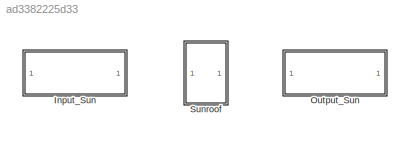
MODEL slx_ad3382225d33
KIND model
CONFIG AbsTol = auto
CONFIG EnableMultiTasking = off
CONFIG FixedStep = auto
CONFIG MaxStep = auto
CONFIG MinStep = auto
CONFIG RelTol = 1e-3
CONFIG SampleTimeConstraint = Unconstrained
CONFIG SolverName = VariableStepAuto
CONFIG StartTime = 0.0
CONFIG StopTime = 6
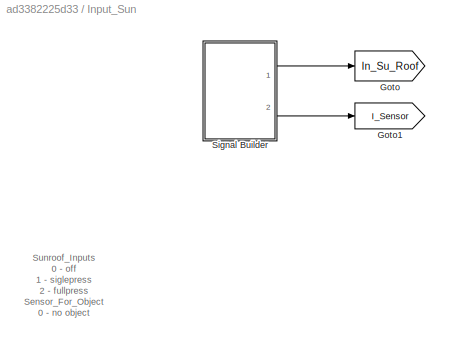
BLOCK [SubSystem] Input_Sun
  Ports = []
  RequestExecContextInheritance = off
BLOCK [Goto] Input_Sun/Goto
  GotoTag = In_Su_Roof
  TagVisibility = global
BLOCK [Goto] Input_Sun/Goto1
  GotoTag = I_Sensor
  TagVisibility = global
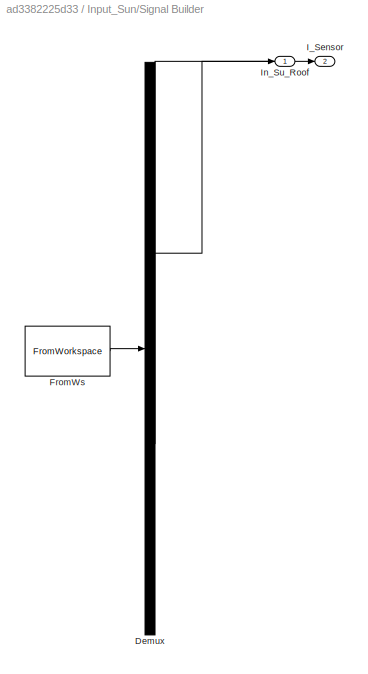
BLOCK [SubSystem] Input_Sun/Signal Builder
  ClipboardFcn = sigbuilder_block('clipboard');
  CloseFcn = sigbuilder_block('close');
  ContinueFcn = sigbuilder_block('continue');
  CopyFcn = sigbuilder_block('copy');
  DeleteFcn = sigbuilder_block('delete');
  LoadFcn = sigbuilder_block('load',[403.5 199.2 550.5 359.55 ]);
  MaskHideContents = on
  ModelCloseFcn = sigbuilder_block('modelClose');
  NameChangeFcn = sigbuilder_block('namechange');
  OpenFcn = sigbuilder_block('open',[403.5 199.2 550.5 359.55 ]);
  PauseFcn = sigbuilder_block('pause');
  Ports = [0, 2]
  PreSaveFcn = sigbuilder_block('preSave');
  RequestExecContextInheritance = off
  StartFcn = sigbuilder_block('start');
  StopFcn = sigbuilder_block('stop');
  Tag = STV Subsys
BLOCK [Demux] Input_Sun/Signal Builder/Demux
  DisplayOption = none
  Outputs = 2
  Ports = [1, 2]
  Tag = STV Demux
BLOCK [FromWorkspace] Input_Sun/Signal Builder/FromWs
  Tag = STV FromWs
  VariableName = tuvar
BLOCK [Outport] Input_Sun/Signal Builder/I_Sensor
  Port = 2
  Tag = STV Outport
BLOCK [Outport] Input_Sun/Signal Builder/In_Su_Roof
  Tag = STV Outport
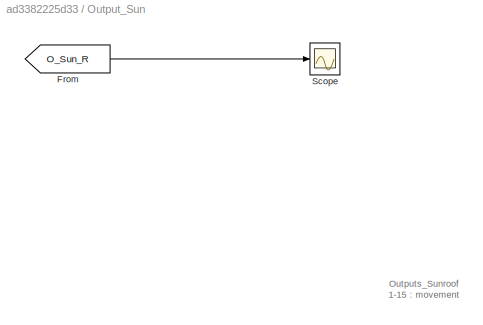
BLOCK [SubSystem] Output_Sun
  Ports = []
  RequestExecContextInheritance = off
BLOCK [From] Output_Sun/From
  GotoTag = O_Sun_R
  TagVisibility = global
BLOCK [Scope] Output_Sun/Scope
  Floating = off
  NumInputPorts = 1
  Ports = [1]
  ScopeSpecificationString = Simulink.scopes.TimeScopeBlockCfg('CurrentConfiguration', extmgr.ConfigurationSet(extmgr.Configuration('Core','General UI',true),extmgr.Configuration('Core','Source UI',true),extmgr.Configuration('Sources','WiredSimulink',true),extmgr.Configuration('Visuals','Time Domain',true,'SerializedDisplays',{struct('MinYLimReal','-1.875','MaxYLimReal','16.875','YLabelReal','','MinYLimMag','0.00000','MaxYLim...<+1396ch>
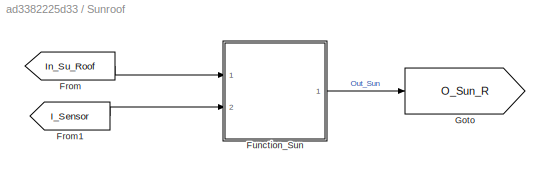
BLOCK [SubSystem] Sunroof
  Ports = []
  RequestExecContextInheritance = off
BLOCK [From] Sunroof/From
  GotoTag = In_Su_Roof
  TagVisibility = global
BLOCK [From] Sunroof/From1
  GotoTag = I_Sensor
  TagVisibility = global
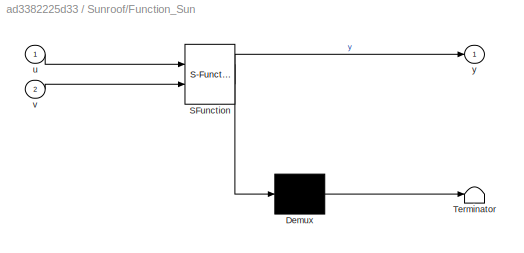
BLOCK [SubSystem] Sunroof/Function_Sun
  ErrorFcn = Stateflow.Translate.translate
  PermitHierarchicalResolution = ExplicitOnly
  Ports = [2, 1]
  RequestExecContextInheritance = off
  SFBlockType = MATLAB Function
  TreatAsAtomicUnit = on
BLOCK [Demux] Sunroof/Function_Sun/ Demux 
  Outputs = 1
  Ports = [1, 1]
BLOCK [S-Function] Sunroof/Function_Sun/ SFunction 
  EnableBusSupport = on
  FunctionName = sf_sfun
  PortCounts = [2 2]
  Ports = [2, 2]
  SFcnIsStateOwnerBlock = off
  SFunctionDeploymentMode = off
  Tag = Stateflow S-Function 2
BLOCK [Terminator] Sunroof/Function_Sun/ Terminator 
BLOCK [Inport] Sunroof/Function_Sun/u
BLOCK [Inport] Sunroof/Function_Sun/v
  Port = 2
BLOCK [Outport] Sunroof/Function_Sun/y
BLOCK [Goto] Sunroof/Goto
  GotoTag = O_Sun_R
  TagVisibility = global
ANNOTATION Input_Sun: Sunroof_Inputs 0 - off 1 - siglepress 2 - fullpress Sensor_For_Object 0 - no object 1 - object
ANNOTATION Output_Sun: Outputs_Sunroof 1-15 : movement
LINE Input_Sun/Signal Builder:1 -> Input_Sun/Goto:1
LINE Input_Sun/Signal Builder:2 -> Input_Sun/Goto1:1
LINE Output_Sun/From:1 -> Output_Sun/Scope:1
LINE Sunroof/From1:1 -> Sunroof/Function_Sun:2
LINE Sunroof/From:1 -> Sunroof/Function_Sun:1
LINE Sunroof/Function_Sun:1 -> Sunroof/Goto:1
CHART Sunroof/Function_Sun states=1 transitions=1
  STATE_LABEL 'eML_blk_kernel()'
  STATE_LABEL 'SCRIPT:\nfunction y = fcn(u,v)\nif u == 1\n    for i = 1:5\n        y = u * i;\n    end\nelseif u == 2\n    for i = 1:5\n        y = u * i;\n    end\nelseif u == 3\n    for i = 1:5\n        y = u * i;\n    end\nelse\n    y = u;\nend\nif v == 1 && u ~= 0\n   y = 15;\nend\n\n'
CHART  states=0 transitions=0
